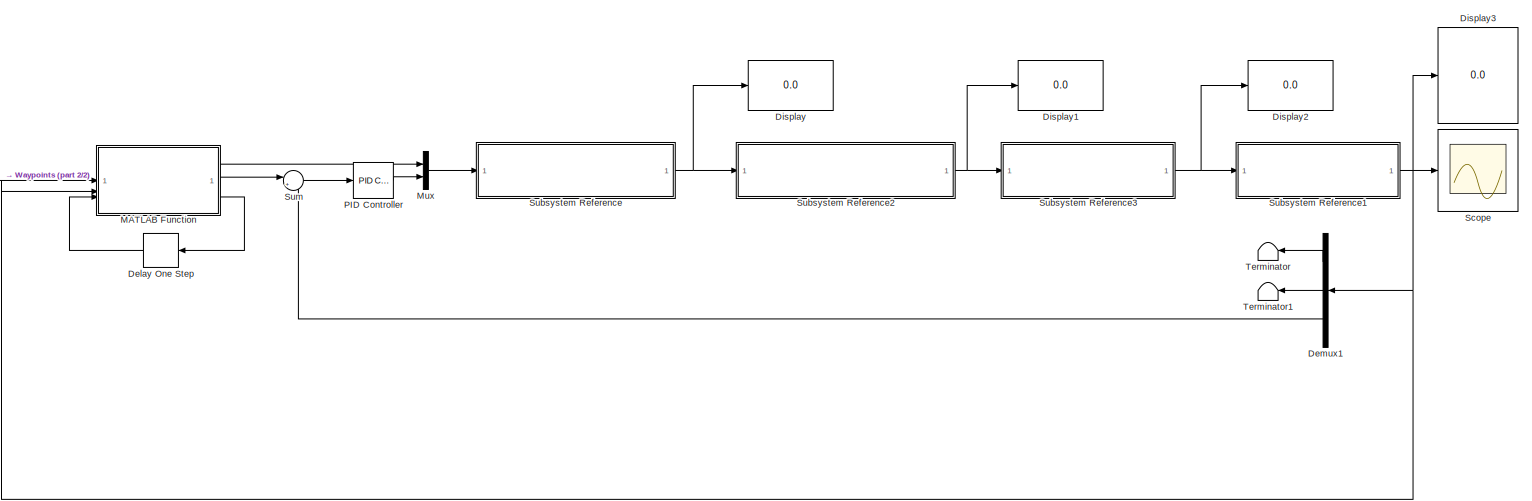
[diagram: root canvas - part 1/2, most of the canvas]
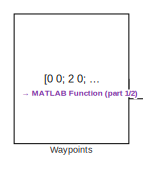
[diagram: root canvas - part 2/2, middle left region]
MODEL slx_5fe498dfa168
KIND model
CONFIG AbsTol = auto
CONFIG EnableMultiTasking = on
CONFIG FixedStep = auto
CONFIG MaxStep = auto
CONFIG MinStep = auto
CONFIG RelTol = 1e-3
CONFIG SampleTimeConstraint = Unconstrained
CONFIG SolverName = FixedStepDiscrete
CONFIG StartTime = 0.0
CONFIG StopTime = 10.0
WORKSPACE source: mxarray member
WORKSPACE d = 0.18
BLOCK [Delay] Delay One Step
  DelayLength = 1
  InputPortMap = u0
BLOCK [Demux] Demux1
  Outputs = 3
BLOCK [Display] Display
  Decimation = 1
BLOCK [Display] Display1
  Decimation = 1
BLOCK [Display] Display2
  Decimation = 1
BLOCK [Display] Display3
  Decimation = 1
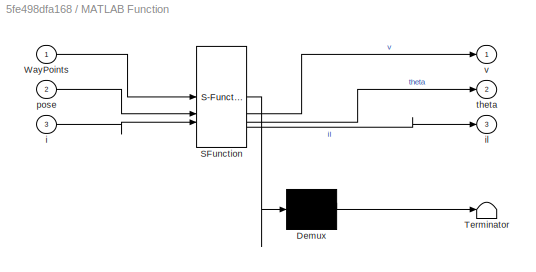
BLOCK [SubSystem] MATLAB Function
  ErrorFcn = Stateflow.Translate.translate
  PermitHierarchicalResolution = ExplicitOnly
  SFBlockType = MATLAB Function
  TreatAsAtomicUnit = on
BLOCK [Demux] MATLAB Function/ Demux 
  Outputs = 1
BLOCK [S-Function] MATLAB Function/ SFunction 
  EnableBusSupport = on
  FunctionName = sf_sfun
  PortCounts = [3 4]
  SFcnIsStateOwnerBlock = off
  SFunctionDeploymentMode = off
  Tag = Stateflow S-Function 2
BLOCK [Terminator] MATLAB Function/ Terminator 
BLOCK [Inport] MATLAB Function/WayPoints
BLOCK [Inport] MATLAB Function/i
  Port = 3
BLOCK [Outport] MATLAB Function/il
  Port = 3
BLOCK [Inport] MATLAB Function/pose
  Port = 2
BLOCK [Outport] MATLAB Function/theta
  Port = 2
BLOCK [Outport] MATLAB Function/v
BLOCK [Mux] Mux
  DisplayOption = bar
  Inputs = 2
BLOCK [Reference] PID Controller  REF=slpidlib/PID Controller
  LibrarySourceBlock = simulink/Continuous/PID Controller
  SourceBlock = slpidlib/PID Controller
  SourceType = PID 1dof
BLOCK [Scope] Scope
  Floating = off
  NumInputPorts = 1
  ScopeSpecificationString = Simulink.scopes.TimeScopeBlockCfg('CurrentConfiguration', extmgr.ConfigurationSet(extmgr.Configuration('Core','General UI',true),extmgr.Configuration('Core','Source UI',true),extmgr.Configuration('Sources','WiredSimulink',true),extmgr.Configuration('Visuals','Time Domain',true,'SerializedDisplays',{struct('MinYLimReal','-0.25276','MaxYLimReal','2.21174','YLabelReal','','MinYLimMag','0.00000','MaxY...<+1390ch>
BLOCK [SubSystem] Subsystem Reference
  ReferencedSubsystem = MyPieroMCI
BLOCK [SubSystem] Subsystem Reference1
  ReferencedSubsystem = Odometria
BLOCK [SubSystem] Subsystem Reference2
  ReferencedSubsystem = MyPieroControlVel
BLOCK [SubSystem] Subsystem Reference3
  ReferencedSubsystem = MyPieroMCD
BLOCK [Sum] Sum
  Inputs = |+-
BLOCK [Terminator] Terminator
BLOCK [Terminator] Terminator1
BLOCK [Constant] Waypoints
  Value = [0 0; 2 0; 2 -1.75; 1 -1.75; 1 -2.6; 0 0]
LINE Delay One Step:1 -> MATLAB Function:3
LINE Demux1:1 -> Terminator:1
LINE Demux1:2 -> Terminator1:1
LINE Demux1:3 -> Sum:2
LINE MATLAB Function:1 -> Mux:1
LINE MATLAB Function:2 -> Sum:1
LINE MATLAB Function:3 -> Delay One Step:1
LINE Mux:1 -> Subsystem Reference:1
LINE PID Controller:1 -> Mux:2
NET Subsystem Reference1:1 -> Demux1:1, Display3:1, MATLAB Function:2, Scope:1
NET Subsystem Reference2:1 -> Display1:1, Subsystem Reference3:1
NET Subsystem Reference3:1 -> Display2:1, Subsystem Reference1:1
NET Subsystem Reference:1 -> Display:1, Subsystem Reference2:1
LINE Sum:1 -> PID Controller:1
LINE Waypoints:1 -> MATLAB Function:1
note: NET lines group one-source signal fan-out (src -> all destinations, sorted); 1:1 wires keep LINE
CHART MATLAB Function states=1 transitions=1
  STATE_LABEL 'eML_blk_kernel()'
  STATE_LABEL 'SCRIPT:\nfunction [v, theta, il] = MyPurePursuit(WayPoints,pose,i)\nx = pose(1);\ny = pose(2);\n\nL = 0.30;    % Distancia de persecución\nv = 0.2;\ntheta = 0.0;\n\nif i >= 1\n    i = i+1;\nelse\n    i = 1;\nend\n\nif length(WayPoints) >= i+1\n    \n    % Calculamos la distancia al objetivo\n    distancia = sqrt((WayPoints(i,1)-x)^2 + (WayPoints(i,2)-y)^2);\n\n    while (distancia < L) && (length(WayPoints) >= i)\n   ...<+321ch>'
CHART  states=0 transitions=0
